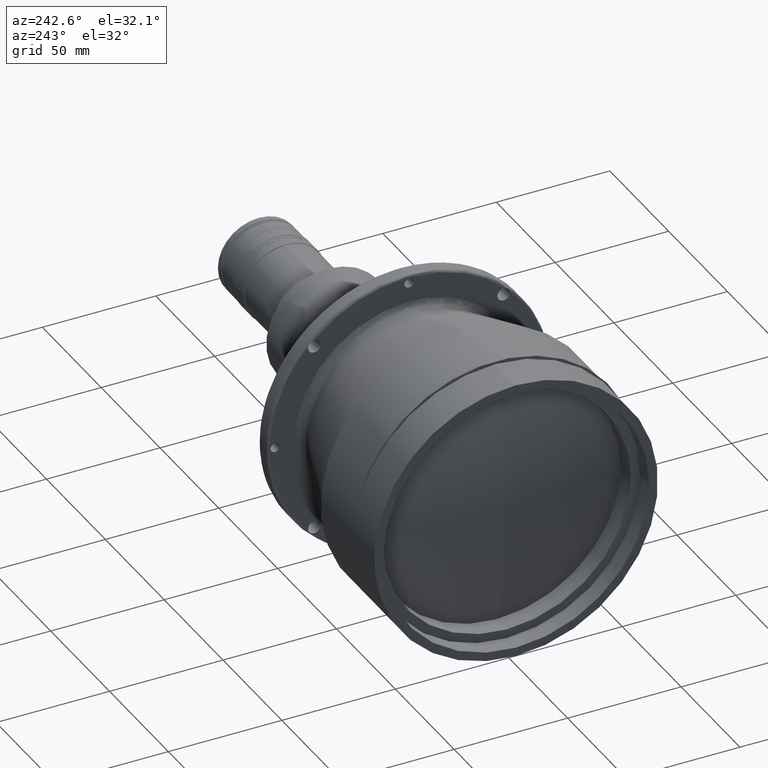
[diagram: clean part render]
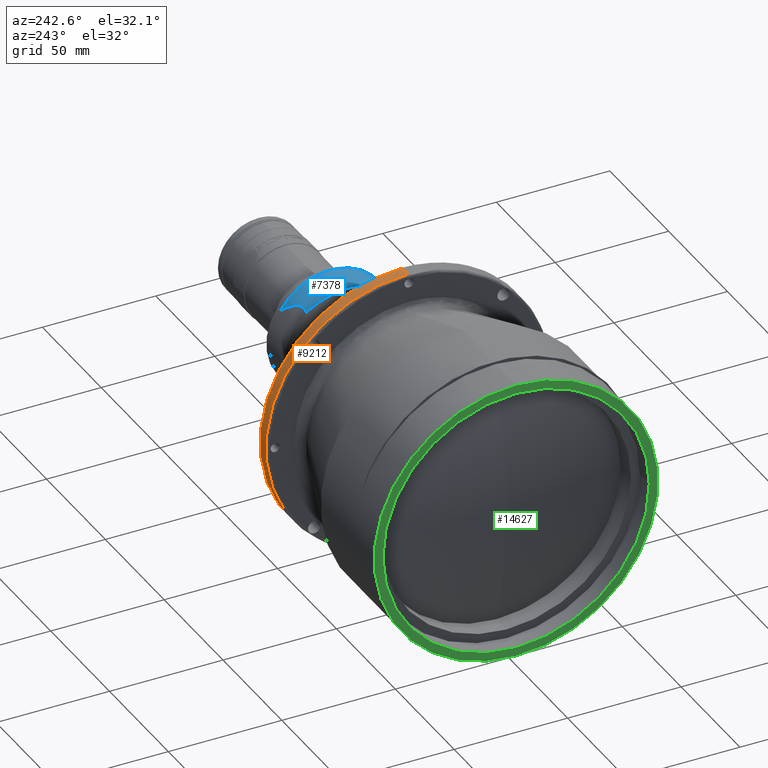
[diagram: same view with three faces highlighted in distinct colors, each labeled with its STEP entity id]
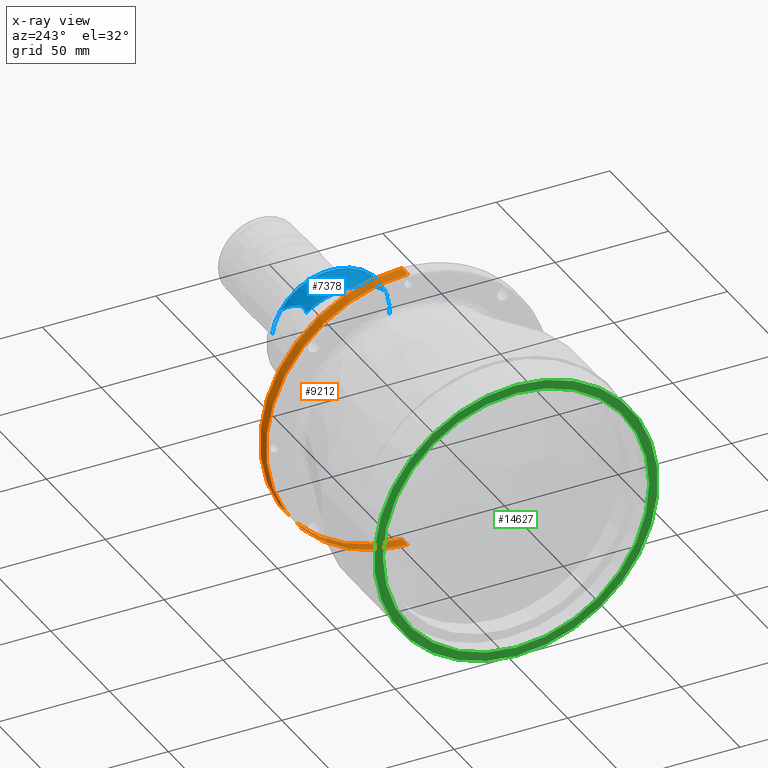
[diagram: x-ray of the same camera — body ghosted, the three highlighted faces saturated]
A machine part, auxiliary view with three faces highlighted in distinct colors.
The next image is the same camera in x-ray (body ghosted, the three faces saturated) — at least one of them is partly hidden behind the body in this view.
Their STEP definitions:

[orange] entity #9212 — the highlighted cylindrical surface (partial cylindrical patch) has radius 62.5 mm, axis along (-1, 0, 0).
#642 = CARTESIAN_POINT ( 'NONE',  ( -59.15176095687567681, -2.806050888397907364E-09, 60.67499843884620958 ) ) ;
#755 = CYLINDRICAL_SURFACE ( 'NONE', #17275, 62.50000000000000000 ) ;
#799 = EDGE_CURVE ( 'NONE', #5747, #6498, #17467, .T. ) ;
#1143 = CARTESIAN_POINT ( 'NONE',  ( -64.15176095803109035, -5.612101776795814729E-09, 60.67499843894874090 ) ) ;
#1943 = DIRECTION ( 'NONE',  ( -1.000000000000000000, 0.000000000000000000, 0.000000000000000000 ) ) ;
#2532 = DIRECTION ( 'NONE',  ( -1.000000000000000000, 0.000000000000000000, 0.000000000000000000 ) ) ;
#3732 = VERTEX_POINT ( 'NONE', #15783 ) ;
#4471 = AXIS2_PLACEMENT_3D ( 'NONE', #8269, #1943, #14174 ) ;
#5672 = DIRECTION ( 'NONE',  ( 1.000000000000000000, -2.220446049244654976E-16, 0.000000000000000000 ) ) ;
#5747 = VERTEX_POINT ( 'NONE', #642 ) ;
#6498 = VERTEX_POINT ( 'NONE', #1143 ) ;
#8256 = CARTESIAN_POINT ( 'NONE',  ( -59.15176095799999700, 0.000000000000000000, -1.825001560999999661 ) ) ;
#8269 = CARTESIAN_POINT ( 'NONE',  ( -64.15176095799999700, 0.000000000000000000, -1.825001561000000105 ) ) ;
#8569 = CARTESIAN_POINT ( 'NONE',  ( -59.15176095799999700, 7.654042494670957804E-15, -64.32500156100000765 ) ) ;
#9004 = EDGE_CURVE ( 'NONE', #3732, #11128, #16149, .T. ) ;
#9212 = ADVANCED_FACE ( 'NONE', ( #15546 ), #755, .T. ) ;
#9659 = EDGE_LOOP ( 'NONE', ( #17702, #19310, #16760, #18351 ) ) ;
#9968 = CARTESIAN_POINT ( 'NONE',  ( -59.15176095799999700, 0.000000000000000000, 60.67499843899999945 ) ) ;
#11128 = VERTEX_POINT ( 'NONE', #18704 ) ;
#11259 = DIRECTION ( 'NONE',  ( -1.000000000000000000, 0.000000000000000000, 0.000000000000000000 ) ) ;
#11929 = VECTOR ( 'NONE', #2532, 1000.000000000000000 ) ;
#11980 = EDGE_CURVE ( 'NONE', #6498, #11128, #12047, .T. ) ;
#12047 = CIRCLE ( 'NONE', #4471, 62.50000000000000000 ) ;
#12370 = EDGE_CURVE ( 'NONE', #3732, #5747, #18929, .T. ) ;
#12859 = DIRECTION ( 'NONE',  ( 2.220446049257598211E-16, 1.000000000000000000, 0.000000000000000000 ) ) ;
#13909 = AXIS2_PLACEMENT_3D ( 'NONE', #17591, #5672, #12859 ) ;
#14174 = DIRECTION ( 'NONE',  ( 0.000000000000000000, 0.000000000000000000, 1.000000000000000000 ) ) ;
#14881 = VECTOR ( 'NONE', #11259, 1000.000000000000000 ) ;
#15546 = FACE_OUTER_BOUND ( 'NONE', #9659, .T. ) ;
#15783 = CARTESIAN_POINT ( 'NONE',  ( -59.15176095715675331, -6.409482141104099689E-09, -64.32500156084620357 ) ) ;
#16149 = LINE ( 'NONE', #8569, #11929 ) ;
#16760 = ORIENTED_EDGE ( 'NONE', *, *, #11980, .F. ) ;
#17218 = DIRECTION ( 'NONE',  ( -1.000000000000000000, 0.000000000000000000, 0.000000000000000000 ) ) ;
#17275 = AXIS2_PLACEMENT_3D ( 'NONE', #8256, #17218, #18696 ) ;
#17467 = LINE ( 'NONE', #9968, #14881 ) ;
#17591 = CARTESIAN_POINT ( 'NONE',  ( -59.15176095687568392, 0.000000000000000000, -1.825001560999999661 ) ) ;
#17702 = ORIENTED_EDGE ( 'NONE', *, *, #12370, .F. ) ;
#18351 = ORIENTED_EDGE ( 'NONE', *, *, #799, .F. ) ;
#18696 = DIRECTION ( 'NONE',  ( 0.000000000000000000, 0.000000000000000000, 1.000000000000000000 ) ) ;
#18704 = CARTESIAN_POINT ( 'NONE',  ( -64.15176095803109035, -1.922844642331229741E-08, -64.32500156094874910 ) ) ;
#18929 = CIRCLE ( 'NONE', #13909, 62.49999999979494447 ) ;
#19310 = ORIENTED_EDGE ( 'NONE', *, *, #9004, .T. ) ;

[blue] entity #7378 — the highlighted face is a freeform B-spline surface patch.
#16 = CARTESIAN_POINT ( 'NONE',  ( -9.096384898007212172, 17.05922446278183102, 19.10304027655379144 ) ) ;
#215 = CARTESIAN_POINT ( 'NONE',  ( -3.110413564229843164, 18.79879920465175047, 17.56032440074467260 ) ) ;
#261 = CARTESIAN_POINT ( 'NONE',  ( -13.00042538673271331, -3.257422948773624594, 25.48765168312097273 ) ) ;
#326 = VERTEX_POINT ( 'NONE', #8140 ) ;
#510 = ORIENTED_EDGE ( 'NONE', *, *, #18883, .T. ) ;
#769 =( BOUNDED_SURFACE ( )  B_SPLINE_SURFACE ( 3, 1, ( 
 ( #3554, #2268 ),
 ( #6808, #6904 ),
 ( #9768, #5137 ),
 ( #17167, #14114 ),
 ( #6715, #6624 ),
 ( #11352, #8494 ),
 ( #3747, #12631 ) ),
 .UNSPECIFIED., .T., .F., .T. ) 
 B_SPLINE_SURFACE_WITH_KNOTS ( ( 4, 3, 4 ),
 ( 2, 2 ),
 ( 0.000000000000000000, 0.5000000000000000000, 1.000000000000000000 ),
 ( 0.000000000000000000, 1.000000000000000000 ),
 .UNSPECIFIED. ) 
 GEOMETRIC_REPRESENTATION_ITEM ( )  RATIONAL_B_SPLINE_SURFACE ( (
 ( 1.000000000000000000, 1.000000000000000000),
 ( 0.3333333333333333703, 0.3333333333333333703),
 ( 0.3333333333333333703, 0.3333333333333333703),
 ( 1.000000000000000000, 1.000000000000000000),
 ( 0.3333333333333333703, 0.3333333333333333703),
 ( 0.3333333333333333703, 0.3333333333333333703),
 ( 1.000000000000000000, 1.000000000000000000) ) ) 
 REPRESENTATION_ITEM ( '' )  SURFACE ( )  );
#853 = CARTESIAN_POINT ( 'NONE',  ( -11.02282986274211751, -17.39513638212950042, 18.82665719444689145 ) ) ;
#909 = B_SPLINE_CURVE_WITH_KNOTS ( 'NONE', 3,
 ( #10795, #13671, #16811, #4481, #12181, #12088, #13759, #7854, #10499, #15232, #261, #13567, #1810, #9034 ),
 .UNSPECIFIED., .F., .F.,
 ( 4, 2, 2, 2, 2, 2, 4 ),
 ( 0.000000000000000000, 0.004850507797871215707, 0.007275761696806825295, 0.009701015595742436617, 0.01455152339361365579, 0.01697677729254926798, 0.01940203119148487670 ),
 .UNSPECIFIED. ) ;
#954 = CARTESIAN_POINT ( 'NONE',  ( -7.465970066019615992, -17.12664064893325744, 19.04794881889745639 ) ) ;
#1518 = EDGE_CURVE ( 'NONE', #10122, #16271, #9359, .T. ) ;
#1552 = AXIS2_PLACEMENT_3D ( 'NONE', #7556, #10493, #9129 ) ;
#1794 = B_SPLINE_CURVE_WITH_KNOTS ( 'NONE', 1,
 ( #16773, #7917 ),
 .UNSPECIFIED., .F., .F.,
 ( 2, 2 ),
 ( 0.000000000000000000, 0.001426224304609279882 ),
 .UNSPECIFIED. ) ;
#1810 = CARTESIAN_POINT ( 'NONE',  ( -13.03999425428697734, -0.8109762436688735532, 25.68319252340852543 ) ) ;
#2105 = DIRECTION ( 'NONE',  ( 0.000000000000000000, 2.664535259100375697E-15, 1.000000000000000000 ) ) ;
#2214 = EDGE_CURVE ( 'NONE', #326, #15570, #3503, .T. ) ;
#2268 = CARTESIAN_POINT ( 'NONE',  ( -138.6517609580000112, 6.696528595552026175, 61.66244662200006843 ) ) ;
#2322 = CARTESIAN_POINT ( 'NONE',  ( -8.116114676404350803, -17.05955833551977108, 19.10281119801406291 ) ) ;
#2414 = CARTESIAN_POINT ( 'NONE',  ( 0.5649773218462372792, -21.30387379261295422, 14.79477082281970013 ) ) ;
#2455 = CARTESIAN_POINT ( 'NONE',  ( -13.03999425428709813, -2.022119044000465932E-11, 25.68319252340917203 ) ) ;
#2584 = CARTESIAN_POINT ( 'NONE',  ( -11.62136427099991209, 17.61189269634052934, 18.64012085868240476 ) ) ;
#2676 = CARTESIAN_POINT ( 'NONE',  ( -11.84551755650568161, 16.43574010788304207, 19.75823405454169190 ) ) ;
#2771 = CARTESIAN_POINT ( 'NONE',  ( -12.73051157805733169, 8.742712830221625708, 24.15244198310539758 ) ) ;
#2955 = CARTESIAN_POINT ( 'NONE',  ( -8.438239619949731818, 17.04584711097372107, 19.11393754047514193 ) ) ;
#3249 = CARTESIAN_POINT ( 'NONE',  ( -11.02198788007594210, 17.39483146221713739, 18.82691960268795128 ) ) ;
#3475 = EDGE_CURVE ( 'NONE', #5482, #18356, #1794, .T. ) ;
#3503 = CIRCLE ( 'NONE', #6037, 25.99030653432069826 ) ;
#3554 = CARTESIAN_POINT ( 'NONE',  ( 1.578635729000000154, 25.71228580363860061, 3.791357606446289719 ) ) ;
#3747 = CARTESIAN_POINT ( 'NONE',  ( 1.578635729000000154, 25.71228580363860061, 3.791357606446289719 ) ) ;
#3812 = CARTESIAN_POINT ( 'NONE',  ( -6.505641318986334021, -17.32150592792795152, 18.88668121529666877 ) ) ;
#3852 = FACE_OUTER_BOUND ( 'NONE', #5911, .T. ) ;
#4051 = ORIENTED_EDGE ( 'NONE', *, *, #9928, .F. ) ;
#4258 = CARTESIAN_POINT ( 'NONE',  ( -12.87669871211899242, 6.419332952914065693, 24.87590521297511970 ) ) ;
#4436 = CARTESIAN_POINT ( 'NONE',  ( -10.40217880939200512, 17.22767660768721143, 18.96494365839780016 ) ) ;
#4481 = CARTESIAN_POINT ( 'NONE',  ( -12.30776851643975611, -13.14019401690924305, 22.05635130587238280 ) ) ;
#4531 = CARTESIAN_POINT ( 'NONE',  ( -11.62136427099991209, 17.61189269634052934, 18.64012085868240476 ) ) ;
#4593 = DIRECTION ( 'NONE',  ( -1.000000000000000000, 0.000000000000000000, 0.000000000000000000 ) ) ;
#4727 = VERTEX_POINT ( 'NONE', #2455 ) ;
#4930 = DIRECTION ( 'NONE',  ( 0.000000000000000000, 0.000000000000000000, 1.000000000000000000 ) ) ;
#5117 = B_SPLINE_CURVE_WITH_KNOTS ( 'NONE', 3,
 ( #6773, #2414, #9830, #12783, #18794, #8454, #5291, #17322, #19081, #7160, #3812, #14461, #954, #2322, #5583, #8351, #16130, #14362, #853, #6867 ),
 .UNSPECIFIED., .F., .F.,
 ( 4, 2, 2, 2, 2, 2, 2, 2, 2, 4 ),
 ( 0.000000000000000000, 0.003940120607581737606, 0.005910180911372609446, 0.007880241215163482152, 0.009850301518954353991, 0.01083533167084979078, 0.01182036182274522583, 0.01280539197464066262, 0.01379042212653609767, 0.01576048243032697124 ),
 .UNSPECIFIED. ) ;
#5137 = CARTESIAN_POINT ( 'NONE',  ( -138.6517609580000112, 116.6283646484480983, -75.05550381310409591 ) ) ;
#5291 = CARTESIAN_POINT ( 'NONE',  ( -3.630048449512281117, -18.50003186300552827, 17.84438086380135502 ) ) ;
#5308 = CARTESIAN_POINT ( 'NONE',  ( 1.378635729000000198, -25.68516506853788073, -3.873894760134483306 ) ) ;
#5381 = ORIENTED_EDGE ( 'NONE', *, *, #10598, .F. ) ;
#5408 = CARTESIAN_POINT ( 'NONE',  ( -11.62136427099991209, 17.61189269634052934, 18.64012085868240476 ) ) ;
#5482 = VERTEX_POINT ( 'NONE', #17992 ) ;
#5583 = CARTESIAN_POINT ( 'NONE',  ( -8.441947338664521183, -17.04587099928572513, 19.11391809440031864 ) ) ;
#5717 = ORIENTED_EDGE ( 'NONE', *, *, #17684, .T. ) ;
#5755 = CARTESIAN_POINT ( 'NONE',  ( -12.40038025625192830, 12.42122778762651691, 22.51646011978051831 ) ) ;
#5911 = EDGE_LOOP ( 'NONE', ( #11936, #7691, #19229, #5717, #16892, #510, #5381, #15047, #4051, #6805, #13259 ) ) ;
#6025 = CARTESIAN_POINT ( 'NONE',  ( -7.463941404038510363, 17.12697927528584785, 19.04767099604670477 ) ) ;
#6037 = AXIS2_PLACEMENT_3D ( 'NONE', #9329, #7862, #18298 ) ;
#6218 = CARTESIAN_POINT ( 'NONE',  ( -0.2887784507858653926, 20.66661063680381716, 15.57543316061661542 ) ) ;
#6516 = EDGE_CURVE ( 'NONE', #10122, #11036, #5117, .T. ) ;
#6624 = CARTESIAN_POINT ( 'NONE',  ( -138.6517609580000112, -130.0214218395521186, -48.26938943089603384 ) ) ;
#6715 = CARTESIAN_POINT ( 'NONE',  ( 1.578635729000000376, -33.29500101653118094, 47.63321400083091106 ) ) ;
#6747 = CARTESIAN_POINT ( 'NONE',  ( -13.00903122219206232, 3.227995431139832672, 25.53024482343712975 ) ) ;
#6773 = CARTESIAN_POINT ( 'NONE',  ( 1.378635729000000643, -21.90894418982718861, 13.95467411649850220 ) ) ;
#6805 = ORIENTED_EDGE ( 'NONE', *, *, #6516, .F. ) ;
#6808 = CARTESIAN_POINT ( 'NONE',  ( 1.578635729000000376, 33.29500101653118094, -47.63321400083091106 ) ) ;
#6867 = CARTESIAN_POINT ( 'NONE',  ( -11.62136427099999736, -17.61189269634041210, 18.64012085868250779 ) ) ;
#6904 = CARTESIAN_POINT ( 'NONE',  ( -138.6517609580000112, 130.0214218395521470, 48.26938943089602674 ) ) ;
#7160 = CARTESIAN_POINT ( 'NONE',  ( -6.197295547151308703, -17.40796653898197732, 18.81427363117833451 ) ) ;
#7250 = CARTESIAN_POINT ( 'NONE',  ( 1.578635729000000154, -25.71228580363860061, -3.791357606446292827 ) ) ;
#7378 = ADVANCED_FACE ( 'NONE', ( #3852 ), #769, .T. ) ;
#7556 = CARTESIAN_POINT ( 'NONE',  ( 1.578635729000000154, 0.000000000000000000, 0.000000000000000000 ) ) ;
#7691 = ORIENTED_EDGE ( 'NONE', *, *, #9093, .T. ) ;
#7713 = CARTESIAN_POINT ( 'NONE',  ( 1.378635729000000198, 0.000000000000000000, -1.517883041479706208E-15 ) ) ;
#7807 = CARTESIAN_POINT ( 'NONE',  ( 0.5648548273552482790, 21.30378270059002688, 14.79489729753863791 ) ) ;
#7854 = CARTESIAN_POINT ( 'NONE',  ( -12.79118318120258913, -7.994377485267841976, 24.45298091430283449 ) ) ;
#7862 = DIRECTION ( 'NONE',  ( -1.000000000000000000, 0.000000000000000000, 0.000000000000000000 ) ) ;
#7908 = CARTESIAN_POINT ( 'NONE',  ( -6.193519247217749601, 17.40908626192170772, 18.81333006707042799 ) ) ;
#7917 = CARTESIAN_POINT ( 'NONE',  ( 1.378635729000000198, 25.68516506853788073, 3.873894760134479753 ) ) ;
#8140 = CARTESIAN_POINT ( 'NONE',  ( 1.578635729000000154, -22.05766024440515594, 13.74611350961676415 ) ) ;
#8233 = CARTESIAN_POINT ( 'NONE',  ( -13.03999425428737169, 1.620194163757087802, 25.68319252341045456 ) ) ;
#8351 = CARTESIAN_POINT ( 'NONE',  ( -9.095166047298320677, -17.05925135928757186, 19.10301835298720619 ) ) ;
#8441 = CARTESIAN_POINT ( 'NONE',  ( 1.378635729000000198, -25.68516506853788073, -3.873894760134483306 ) ) ;
#8454 = CARTESIAN_POINT ( 'NONE',  ( -3.117540424778064700, -18.79459547542030151, 17.56440361724138199 ) ) ;
#8477 = AXIS2_PLACEMENT_3D ( 'NONE', #12403, #4593, #18020 ) ;
#8494 = CARTESIAN_POINT ( 'NONE',  ( -138.6517609580000112, -116.6283646484480983, 75.05550381310409591 ) ) ;
#8624 = CARTESIAN_POINT ( 'NONE',  ( 1.378635729000000643, -21.90894418982718861, 13.95467411649850220 ) ) ;
#8668 = CARTESIAN_POINT ( 'NONE',  ( 1.378635729000000198, 25.68516506853788073, 3.873894760134479753 ) ) ;
#8772 = AXIS2_PLACEMENT_3D ( 'NONE', #9616, #15615, #2105 ) ;
#8931 = VERTEX_POINT ( 'NONE', #17918 ) ;
#9034 = CARTESIAN_POINT ( 'NONE',  ( -13.03999425428709813, -2.022119044000465932E-11, 25.68319252340917203 ) ) ;
#9093 = EDGE_CURVE ( 'NONE', #16969, #326, #12241, .T. ) ;
#9129 = DIRECTION ( 'NONE',  ( 0.000000000000000000, 0.000000000000000000, 1.000000000000000000 ) ) ;
#9260 = CARTESIAN_POINT ( 'NONE',  ( -11.62136427099999736, -17.61189269634041210, 18.64012085868250779 ) ) ;
#9329 = CARTESIAN_POINT ( 'NONE',  ( 1.578635729000000154, 0.000000000000000000, 0.000000000000000000 ) ) ;
#9359 = CIRCLE ( 'NONE', #17850, 25.97565716609756592 ) ;
#9411 = CIRCLE ( 'NONE', #8772, 25.97565716609756592 ) ;
#9616 = CARTESIAN_POINT ( 'NONE',  ( 1.378635729000000198, 0.000000000000000000, -1.517883041479706208E-15 ) ) ;
#9702 = CARTESIAN_POINT ( 'NONE',  ( -13.03999425428709813, -2.022119044000465932E-11, 25.68319252340917203 ) ) ;
#9768 = CARTESIAN_POINT ( 'NONE',  ( 1.578635729000000376, -18.12957059074601673, -55.21592921372349139 ) ) ;
#9830 = CARTESIAN_POINT ( 'NONE',  ( -0.2837788408523245209, -20.67008189492460346, 15.57157187365757345 ) ) ;
#9928 = EDGE_CURVE ( 'NONE', #11036, #4727, #909, .T. ) ;
#10122 = VERTEX_POINT ( 'NONE', #8624 ) ;
#10454 = CARTESIAN_POINT ( 'NONE',  ( -7.142507840239304073, 17.18004465848907714, 19.00417391261020228 ) ) ;
#10493 = DIRECTION ( 'NONE',  ( -1.000000000000000000, 0.000000000000000000, 0.000000000000000000 ) ) ;
#10499 = CARTESIAN_POINT ( 'NONE',  ( -12.88331288166268607, -6.445719159030557144, 24.90865108935649275 ) ) ;
#10598 = EDGE_CURVE ( 'NONE', #14590, #8931, #16618, .T. ) ;
#10647 = CARTESIAN_POINT ( 'NONE',  ( -3.625155176845931138, 18.50248293480875716, 17.84213790850158787 ) ) ;
#10746 = CARTESIAN_POINT ( 'NONE',  ( -6.504289234838020128, 17.32176918929021170, 18.88646380316677664 ) ) ;
#10795 = CARTESIAN_POINT ( 'NONE',  ( -11.62136427099999736, -17.61189269634041210, 18.64012085868250779 ) ) ;
#10849 = CARTESIAN_POINT ( 'NONE',  ( -2.125655076928384180, 19.40788245878126972, 16.95050942128854032 ) ) ;
#11036 = VERTEX_POINT ( 'NONE', #9260 ) ;
#11352 = CARTESIAN_POINT ( 'NONE',  ( 1.578635729000000376, 18.12957059074601673, 55.21592921372349139 ) ) ;
#11574 = CARTESIAN_POINT ( 'NONE',  ( -12.78402745657256467, 7.978954411289819859, 24.41735205834569200 ) ) ;
#11936 = ORIENTED_EDGE ( 'NONE', *, *, #13973, .F. ) ;
#12088 = CARTESIAN_POINT ( 'NONE',  ( -12.53915485968579269, -11.00222251335970824, 23.20437120935435971 ) ) ;
#12133 = CARTESIAN_POINT ( 'NONE',  ( -8.111806827282377341, 17.05987477278118192, 19.10255327722192931 ) ) ;
#12181 = CARTESIAN_POINT ( 'NONE',  ( -12.38912871296846951, -12.44238057630244221, 22.46019880902241539 ) ) ;
#12241 = CIRCLE ( 'NONE', #8477, 25.99030653432069826 ) ;
#12403 = CARTESIAN_POINT ( 'NONE',  ( 1.578635729000000154, 0.000000000000000000, 0.000000000000000000 ) ) ;
#12469 = CARTESIAN_POINT ( 'NONE',  ( 1.578635729000000154, 22.05767846504427254, 13.74608769852621393 ) ) ;
#12631 = CARTESIAN_POINT ( 'NONE',  ( -138.6517609580000112, 6.696528595552026175, 61.66244662200006843 ) ) ;
#12773 = B_SPLINE_CURVE_WITH_KNOTS ( 'NONE', 1,
 ( #7250, #8441 ),
 .UNSPECIFIED., .F., .F.,
 ( 2, 2 ),
 ( 0.000000000000000000, 0.001426224304609280966 ),
 .UNSPECIFIED. ) ;
#12783 = CARTESIAN_POINT ( 'NONE',  ( -1.657183174076492183, -19.71992908369936615, 16.62351220397437146 ) ) ;
#13259 = ORIENTED_EDGE ( 'NONE', *, *, #1518, .T. ) ;
#13567 = CARTESIAN_POINT ( 'NONE',  ( -13.03214990722374189, -1.626942010554480733, 25.64443489854773972 ) ) ;
#13671 = CARTESIAN_POINT ( 'NONE',  ( -11.84573982196982733, -16.43457386086422645, 19.75934275097627690 ) ) ;
#13759 = CARTESIAN_POINT ( 'NONE',  ( -12.60806274105652314, -10.25617131684655092, 23.54589295316562314 ) ) ;
#13973 = EDGE_CURVE ( 'NONE', #16969, #16271, #12773, .T. ) ;
#14114 = CARTESIAN_POINT ( 'NONE',  ( -138.6517609580000112, -6.696528595552017293, -61.66244662200006843 ) ) ;
#14362 = CARTESIAN_POINT ( 'NONE',  ( -10.40214338194278199, -17.22735046000014236, 18.96521577931196134 ) ) ;
#14461 = CARTESIAN_POINT ( 'NONE',  ( -7.139207237000534612, -17.18074072678915343, 19.00359702642387916 ) ) ;
#14590 = VERTEX_POINT ( 'NONE', #5408 ) ;
#14713 = CARTESIAN_POINT ( 'NONE',  ( -12.04654339107716687, 15.16176680196665671, 20.75851143725569159 ) ) ;
#14988 = CARTESIAN_POINT ( 'NONE',  ( -5.289513414342754238, 17.70699836686931761, 18.55955819133852458 ) ) ;
#15047 = ORIENTED_EDGE ( 'NONE', *, *, #16605, .F. ) ;
#15232 = CARTESIAN_POINT ( 'NONE',  ( -12.97677431705304407, -4.062122738949828005, 25.37075785251314031 ) ) ;
#15363 = CARTESIAN_POINT ( 'NONE',  ( 1.578635729000000154, -25.71228580363860061, -3.791357606446292827 ) ) ;
#15570 = VERTEX_POINT ( 'NONE', #12469 ) ;
#15615 = DIRECTION ( 'NONE',  ( 1.000000000000000000, -0.000000000000000000, 0.000000000000000000 ) ) ;
#16130 = CARTESIAN_POINT ( 'NONE',  ( -9.424355202149161670, -17.08659819193934482, 19.08078346275560477 ) ) ;
#16271 = VERTEX_POINT ( 'NONE', #5308 ) ;
#16471 = CARTESIAN_POINT ( 'NONE',  ( -4.720089634651793098, 17.95389339162733222, 18.34418190655259551 ) ) ;
#16570 = CARTESIAN_POINT ( 'NONE',  ( -9.430318405110259761, 17.08729754628504338, 19.08021138806785899 ) ) ;
#16605 = EDGE_CURVE ( 'NONE', #4727, #14590, #16917, .T. ) ;
#16618 = B_SPLINE_CURVE_WITH_KNOTS ( 'NONE', 3,
 ( #4531, #3249, #4436, #16570, #16, #2955, #12133, #6025, #10454, #10746, #7908, #14988, #16471, #10647, #215, #10849, #18145, #6218, #7807, #16765 ),
 .UNSPECIFIED., .F., .F.,
 ( 4, 2, 2, 2, 2, 2, 2, 2, 2, 4 ),
 ( 5.575456304969596468E-17, 0.001967322898605455752, 0.002950984347908153921, 0.003934645797210851656, 0.004918307246513552861, 0.005901968695816253198, 0.007869291594421654740, 0.009836614493027055414, 0.01180393739163245782, 0.01573858318884326091 ),
 .UNSPECIFIED. ) ;
#16765 = CARTESIAN_POINT ( 'NONE',  ( 1.378635729000000643, 21.90894418982724545, 13.95467411649841871 ) ) ;
#16773 = CARTESIAN_POINT ( 'NONE',  ( 1.578635729000000154, 25.71228580363860061, 3.791357606446289719 ) ) ;
#16811 = CARTESIAN_POINT ( 'NONE',  ( -12.04522503551725521, -15.16854549375359973, 20.75194277925545450 ) ) ;
#16892 = ORIENTED_EDGE ( 'NONE', *, *, #3475, .T. ) ;
#16917 = B_SPLINE_CURVE_WITH_KNOTS ( 'NONE', 3,
 ( #9702, #8233, #6747, #18765, #4258, #11574, #2771, #17771, #5755, #14713, #2676, #2584 ),
 .UNSPECIFIED., .F., .F.,
 ( 4, 2, 2, 2, 2, 4 ),
 ( 0.01940203119148487670, 0.02424728065903405949, 0.02666990539280865435, 0.02909253012658324575, 0.03393777959413243894, 0.03878302906168162867 ),
 .UNSPECIFIED. ) ;
#16969 = VERTEX_POINT ( 'NONE', #15363 ) ;
#17167 = CARTESIAN_POINT ( 'NONE',  ( 1.578635729000000154, -25.71228580363860061, -3.791357606446292827 ) ) ;
#17322 = CARTESIAN_POINT ( 'NONE',  ( -4.715171970398849943, -17.95635668423819098, 18.34192776732657393 ) ) ;
#17684 = EDGE_CURVE ( 'NONE', #15570, #5482, #17919, .T. ) ;
#17771 = CARTESIAN_POINT ( 'NONE',  ( -12.54905290636186876, 10.98708951832606573, 23.25359113695346380 ) ) ;
#17850 = AXIS2_PLACEMENT_3D ( 'NONE', #7713, #18538, #4930 ) ;
#17918 = CARTESIAN_POINT ( 'NONE',  ( 1.378635729000000643, 21.90894418982724545, 13.95467411649841871 ) ) ;
#17919 = CIRCLE ( 'NONE', #1552, 25.99030653432069826 ) ;
#17992 = CARTESIAN_POINT ( 'NONE',  ( 1.578635729000000154, 25.71228580363860061, 3.791357606446289719 ) ) ;
#18020 = DIRECTION ( 'NONE',  ( 0.000000000000000000, 0.000000000000000000, 1.000000000000000000 ) ) ;
#18145 = CARTESIAN_POINT ( 'NONE',  ( -1.655191552937117061, 19.72131314292380821, 16.62197078807028561 ) ) ;
#18298 = DIRECTION ( 'NONE',  ( 0.000000000000000000, 0.000000000000000000, 1.000000000000000000 ) ) ;
#18356 = VERTEX_POINT ( 'NONE', #8668 ) ;
#18538 = DIRECTION ( 'NONE',  ( 1.000000000000000000, -0.000000000000000000, 0.000000000000000000 ) ) ;
#18765 = CARTESIAN_POINT ( 'NONE',  ( -12.91586944308491525, 5.620965292246249412, 25.06962368320603218 ) ) ;
#18794 = CARTESIAN_POINT ( 'NONE',  ( -2.131551553130406784, -19.40403380039590076, 16.95449056535412424 ) ) ;
#18883 = EDGE_CURVE ( 'NONE', #18356, #8931, #9411, .T. ) ;
#19081 = CARTESIAN_POINT ( 'NONE',  ( -5.293108829506411261, -17.70556631434237360, 18.56079838434332174 ) ) ;
#19229 = ORIENTED_EDGE ( 'NONE', *, *, #2214, .T. ) ;

[green] entity #14627 — the highlighted planar face has unit normal (1, 0, -0).
#119 = EDGE_CURVE ( 'NONE', #7620, #8941, #5138, .T. ) ;
#873 = DIRECTION ( 'NONE',  ( 4.728377447296237619E-16, 1.000000000000000000, 0.000000000000000000 ) ) ;
#1069 = DIRECTION ( 'NONE',  ( -1.000000000000000000, 2.364188723648119302E-16, -5.589388321024922324E-32 ) ) ;
#2236 = DIRECTION ( 'NONE',  ( 1.000000000000000000, 0.000000000000000000, -0.000000000000000000 ) ) ;
#2724 = CARTESIAN_POINT ( 'NONE',  ( -156.1517609580000112, 0.000000000000000000, 60.67499843899999945 ) ) ;
#2730 = CIRCLE ( 'NONE', #6845, 62.50000000000000000 ) ;
#4479 = CARTESIAN_POINT ( 'NONE',  ( -156.1517609580000112, 0.000000000000000000, -1.825001560999999661 ) ) ;
#5138 = CIRCLE ( 'NONE', #6758, 62.50000000000000000 ) ;
#5939 = DIRECTION ( 'NONE',  ( 4.728377447296237619E-16, 1.000000000000000000, 0.000000000000000000 ) ) ;
#6758 = AXIS2_PLACEMENT_3D ( 'NONE', #4479, #10595, #10497 ) ;
#6845 = AXIS2_PLACEMENT_3D ( 'NONE', #7951, #12275, #18282 ) ;
#7118 = EDGE_LOOP ( 'NONE', ( #16212, #19213 ) ) ;
#7620 = VERTEX_POINT ( 'NONE', #18426 ) ;
#7951 = CARTESIAN_POINT ( 'NONE',  ( -156.1517609580000112, 0.000000000000000000, -1.825001560999999661 ) ) ;
#8941 = VERTEX_POINT ( 'NONE', #2724 ) ;
#9937 = CARTESIAN_POINT ( 'NONE',  ( -156.1517609580000112, 63.25000000000000000, -65.07500156099999344 ) ) ;
#10497 = DIRECTION ( 'NONE',  ( 0.000000000000000000, 0.000000000000000000, 1.000000000000000000 ) ) ;
#10595 = DIRECTION ( 'NONE',  ( -1.000000000000000000, 0.000000000000000000, 0.000000000000000000 ) ) ;
#10761 = CARTESIAN_POINT ( 'NONE',  ( -156.1517609580000112, -5.892197960578711658E-40, -1.825001560999999661 ) ) ;
#10816 = CIRCLE ( 'NONE', #14283, 58.70000000000000284 ) ;
#11425 = PLANE ( 'NONE',  #14255 ) ;
#12275 = DIRECTION ( 'NONE',  ( -1.000000000000000000, 0.000000000000000000, 0.000000000000000000 ) ) ;
#12703 = FACE_OUTER_BOUND ( 'NONE', #18832, .T. ) ;
#12821 = CIRCLE ( 'NONE', #17539, 58.70000000000000284 ) ;
#13000 = CARTESIAN_POINT ( 'NONE',  ( -156.1517609580000112, -5.892197960578711658E-40, -1.825001560999999661 ) ) ;
#13825 = DIRECTION ( 'NONE',  ( -1.000000000000000000, 2.364188723648119302E-16, -5.589388321024922324E-32 ) ) ;
#14255 = AXIS2_PLACEMENT_3D ( 'NONE', #9937, #2236, #16042 ) ;
#14283 = AXIS2_PLACEMENT_3D ( 'NONE', #10761, #13825, #5939 ) ;
#14416 = VERTEX_POINT ( 'NONE', #19048 ) ;
#14627 = ADVANCED_FACE ( 'NONE', ( #17432, #12703 ), #11425, .F. ) ;
#15563 = CARTESIAN_POINT ( 'NONE',  ( -156.1517609580000396, -58.70000000000000284, -1.825001560999992556 ) ) ;
#15719 = EDGE_CURVE ( 'NONE', #14416, #16957, #10816, .T. ) ;
#16042 = DIRECTION ( 'NONE',  ( 0.000000000000000000, 0.000000000000000000, 1.000000000000000000 ) ) ;
#16212 = ORIENTED_EDGE ( 'NONE', *, *, #15719, .F. ) ;
#16284 = EDGE_CURVE ( 'NONE', #16957, #14416, #12821, .T. ) ;
#16469 = EDGE_CURVE ( 'NONE', #8941, #7620, #2730, .T. ) ;
#16957 = VERTEX_POINT ( 'NONE', #15563 ) ;
#17376 = ORIENTED_EDGE ( 'NONE', *, *, #16469, .T. ) ;
#17432 = FACE_BOUND ( 'NONE', #7118, .T. ) ;
#17539 = AXIS2_PLACEMENT_3D ( 'NONE', #13000, #1069, #873 ) ;
#18282 = DIRECTION ( 'NONE',  ( 0.000000000000000000, 0.000000000000000000, 1.000000000000000000 ) ) ;
#18426 = CARTESIAN_POINT ( 'NONE',  ( -156.1517609580000112, 7.654042494670957804E-15, -64.32500156100000765 ) ) ;
#18810 = ORIENTED_EDGE ( 'NONE', *, *, #119, .T. ) ;
#18832 = EDGE_LOOP ( 'NONE', ( #17376, #18810 ) ) ;
#19048 = CARTESIAN_POINT ( 'NONE',  ( -156.1517609579999828, 58.70000000000000284, -1.825001560999999661 ) ) ;
#19213 = ORIENTED_EDGE ( 'NONE', *, *, #16284, .F. ) ;